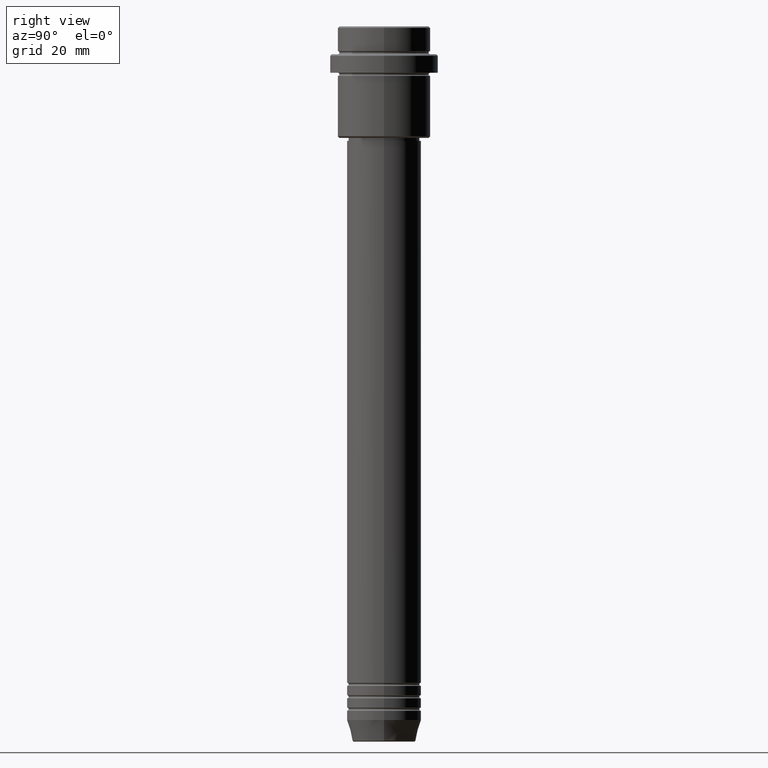
[diagram: clean part render]
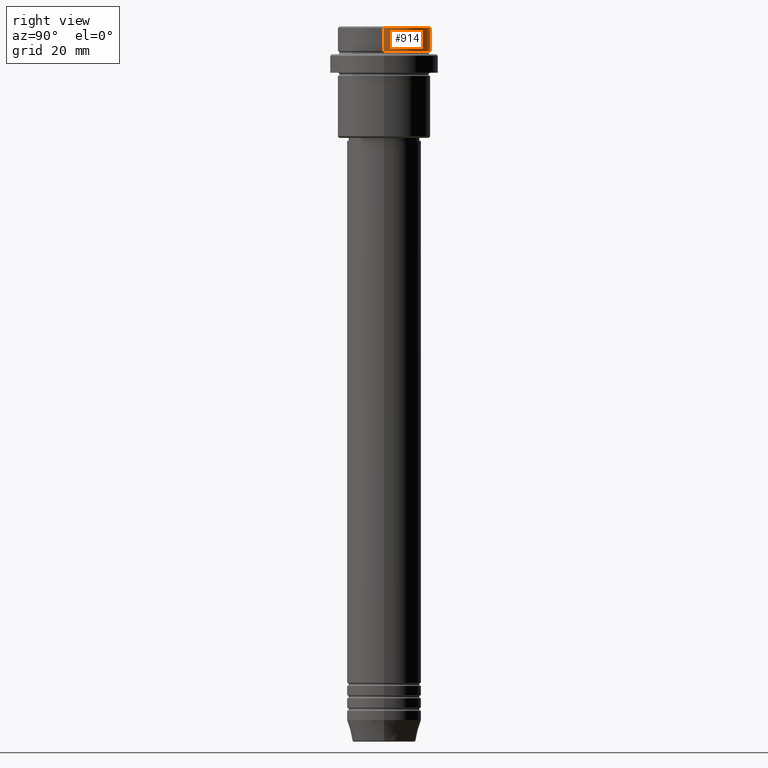
[diagram: same view with one face highlighted and labeled with its STEP entity id]
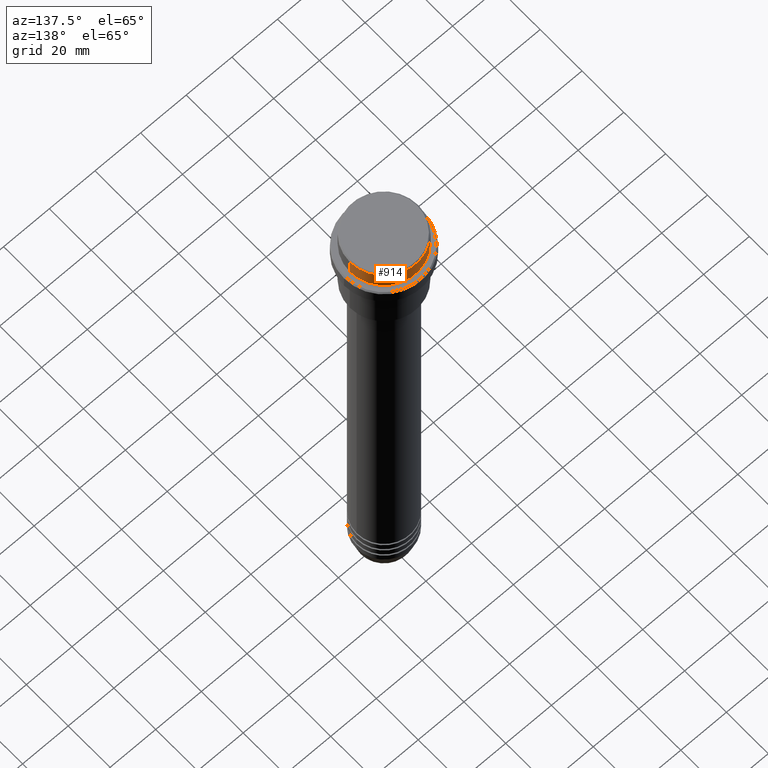
[diagram: same view with one face highlighted and labeled with its STEP entity id]
A machine part, right view. The second image highlights one B-rep face of the part: STEP entity #914.
A second angle (auxiliary view) of the same face is appended — the face is thin or edge-on in the first view.
In plain terms, the highlighted cylindrical surface (partial cylindrical patch) has radius 15 mm, axis along (-0, -0, 1).
Its self-contained STEP definition (entity closure, byte-faithful):
#13 = EDGE_CURVE ( 'NONE', #138, #101, #1170, .T. ) ;
#86 = CARTESIAN_POINT ( 'NONE',  ( 15.00000000000000000, 0.000000000000000000, 0.000000000000000000 ) ) ;
#101 = VERTEX_POINT ( 'NONE', #455 ) ;
#112 = DIRECTION ( 'NONE',  ( 1.000000000000000000, 0.000000000000000000, 0.000000000000000000 ) ) ;
#138 = VERTEX_POINT ( 'NONE', #241 ) ;
#157 = AXIS2_PLACEMENT_3D ( 'NONE', #1212, #1105, #112 ) ;
#206 = EDGE_CURVE ( 'NONE', #226, #101, #402, .T. ) ;
#220 = CARTESIAN_POINT ( 'NONE',  ( 15.00000000000000000, 0.000000000000000000, -7.999999999999998224 ) ) ;
#226 = VERTEX_POINT ( 'NONE', #220 ) ;
#241 = CARTESIAN_POINT ( 'NONE',  ( -15.00000000000000000, 1.836970198721029589E-15, -0.5000000000000108802 ) ) ;
#270 = VERTEX_POINT ( 'NONE', #812 ) ;
#296 = EDGE_CURVE ( 'NONE', #270, #138, #731, .T. ) ;
#371 = CARTESIAN_POINT ( 'NONE',  ( 0.000000000000000000, 0.000000000000000000, -7.999999999999998224 ) ) ;
#402 = LINE ( 'NONE', #86, #874 ) ;
#455 = CARTESIAN_POINT ( 'NONE',  ( 15.00000000000000000, 0.000000000000000000, -0.5000000000000108802 ) ) ;
#529 = DIRECTION ( 'NONE',  ( -0.000000000000000000, -0.000000000000000000, 1.000000000000000000 ) ) ;
#541 = ORIENTED_EDGE ( 'NONE', *, *, #1403, .T. ) ;
#575 = CIRCLE ( 'NONE', #1281, 15.00000000000000000 ) ;
#587 = EDGE_LOOP ( 'NONE', ( #541, #751, #790, #725 ) ) ;
#644 = AXIS2_PLACEMENT_3D ( 'NONE', #1325, #687, #1249 ) ;
#687 = DIRECTION ( 'NONE',  ( -0.000000000000000000, -0.000000000000000000, 1.000000000000000000 ) ) ;
#725 = ORIENTED_EDGE ( 'NONE', *, *, #206, .F. ) ;
#731 = LINE ( 'NONE', #1161, #1079 ) ;
#751 = ORIENTED_EDGE ( 'NONE', *, *, #296, .T. ) ;
#790 = ORIENTED_EDGE ( 'NONE', *, *, #13, .T. ) ;
#812 = CARTESIAN_POINT ( 'NONE',  ( -15.00000000000000000, 1.836970198721029589E-15, -7.999999999999998224 ) ) ;
#819 = FACE_OUTER_BOUND ( 'NONE', #587, .T. ) ;
#834 = DIRECTION ( 'NONE',  ( -0.000000000000000000, -0.000000000000000000, 1.000000000000000000 ) ) ;
#874 = VECTOR ( 'NONE', #529, 1000.000000000000000 ) ;
#914 = ADVANCED_FACE ( 'NONE', ( #819 ), #1163, .T. ) ;
#1079 = VECTOR ( 'NONE', #834, 1000.000000000000000 ) ;
#1105 = DIRECTION ( 'NONE',  ( 0.000000000000000000, 0.000000000000000000, -1.000000000000000000 ) ) ;
#1161 = CARTESIAN_POINT ( 'NONE',  ( -15.00000000000000000, 1.836970198721029589E-15, 0.000000000000000000 ) ) ;
#1163 = CYLINDRICAL_SURFACE ( 'NONE', #644, 15.00000000000000000 ) ;
#1170 = CIRCLE ( 'NONE', #157, 15.00000000000000000 ) ;
#1212 = CARTESIAN_POINT ( 'NONE',  ( 0.000000000000000000, 0.000000000000000000, -0.5000000000000108802 ) ) ;
#1249 = DIRECTION ( 'NONE',  ( 1.000000000000000000, 0.000000000000000000, 0.000000000000000000 ) ) ;
#1281 = AXIS2_PLACEMENT_3D ( 'NONE', #371, #1366, #1354 ) ;
#1325 = CARTESIAN_POINT ( 'NONE',  ( 0.000000000000000000, 0.000000000000000000, 0.000000000000000000 ) ) ;
#1354 = DIRECTION ( 'NONE',  ( 1.000000000000000000, 0.000000000000000000, 0.000000000000000000 ) ) ;
#1366 = DIRECTION ( 'NONE',  ( -0.000000000000000000, -0.000000000000000000, 1.000000000000000000 ) ) ;
#1403 = EDGE_CURVE ( 'NONE', #226, #270, #575, .T. ) ;